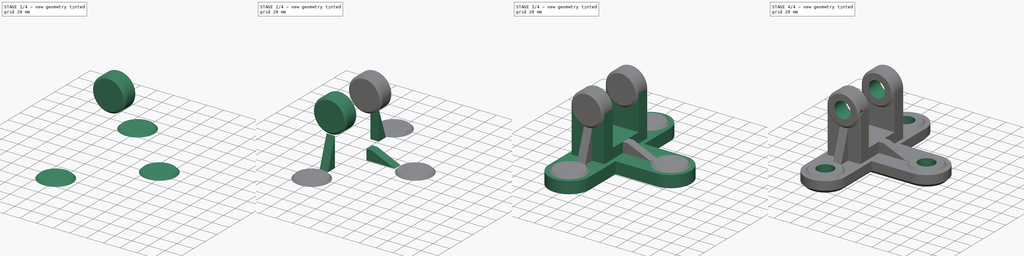
[diagram: build sequence overview — one tinted view per stage of 4, left to right]
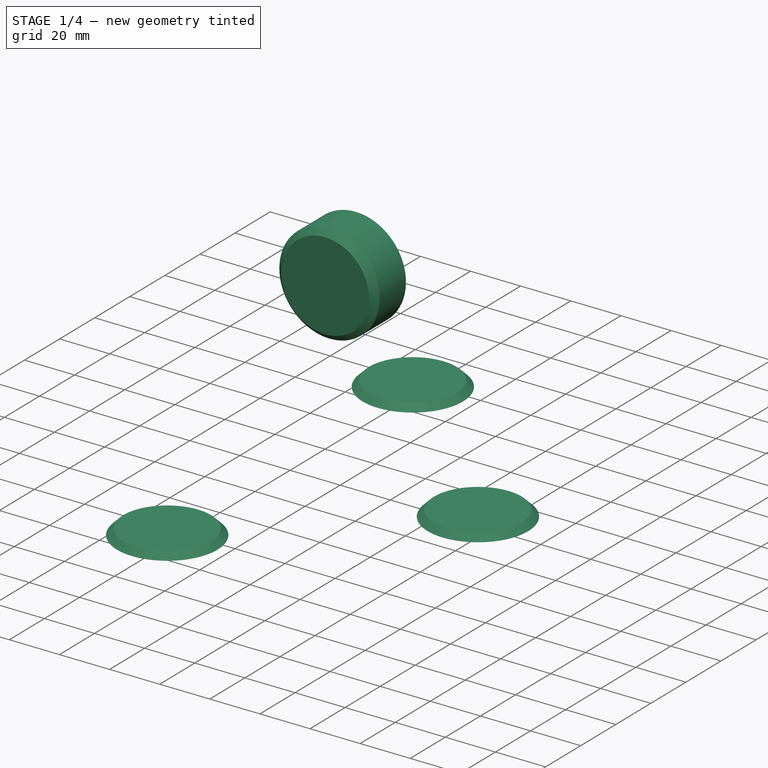
[diagram: stage 1 of 4 — iso view after this stage's code; geometry added in this stage tinted green]
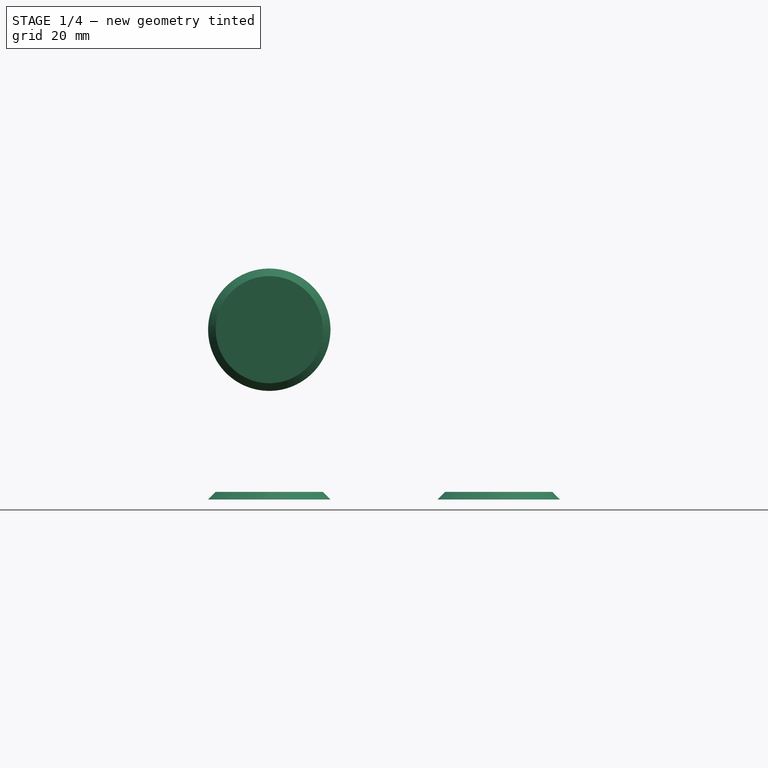
[diagram: stage 1 of 4 — front view after this stage's code; geometry added in this stage tinted green]
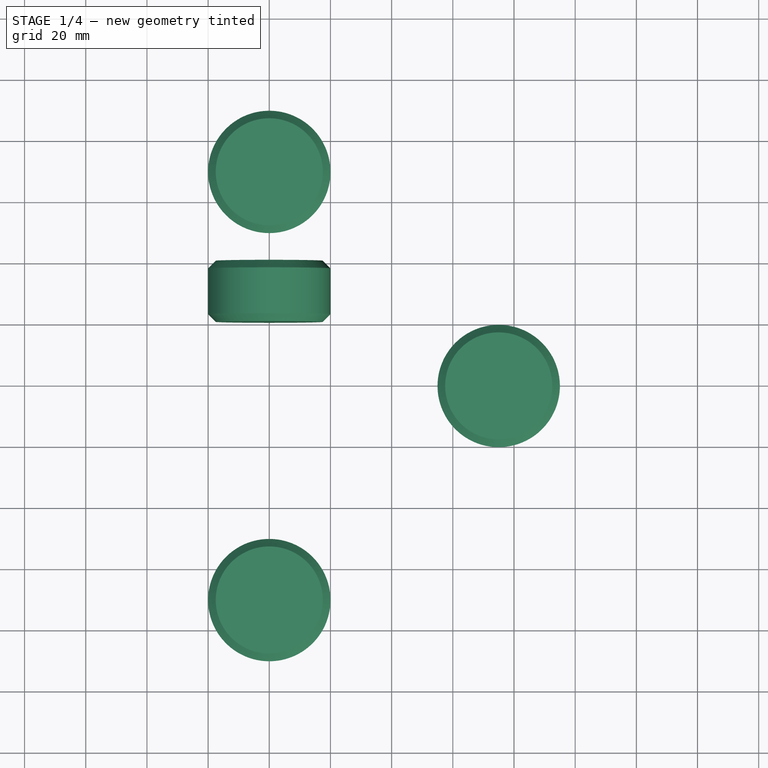
[diagram: stage 1 of 4 — top view after this stage's code; geometry added in this stage tinted green]
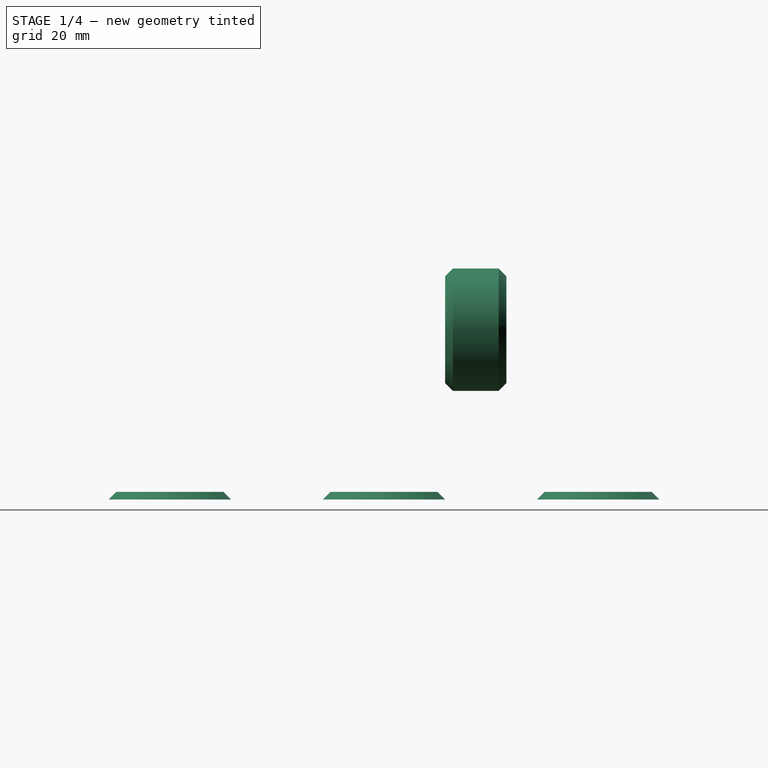
[diagram: stage 1 of 4 — right view after this stage's code; geometry added in this stage tinted green]
FCSTD DOCUMENT  (FreeCAD 0.15R4671 (Git))
Label: fork breaking
License: All rights reserved
LicenseURL: http://en.wikipedia.org/wiki/All_rights_reserved
objects: Sketcher::SketchObject×11, PartDesign::Revolution×5, PartDesign::Pad×4, PartDesign::Pocket×2, Part::MultiFuse×1, PartDesign::Chamfer×1, PartDesign::Fillet×1
note: 36 computed .brp shape members not serialized (recipe doc carries the construction recipe); baked Part::Feature solids carry a one-line shape summary decoded from their .brp

FEATURE [Sketcher::SketchObject] Sketch005
  Placement = pos=(0,0,0) rot=(0.57735,0.57735,0.57735;2.0944rad)
  sketch-geometry (7):
    g0: LineSegment StartX=20 StartY=70 StartZ=0 EndX=40 EndY=70 EndZ=0
    g1: LineSegment StartX=20 StartY=70 StartZ=0 EndX=20 EndY=87.5 EndZ=0
    g2: LineSegment StartX=20 StartY=87.5 StartZ=0 EndX=22.5 EndY=90 EndZ=0
    g3: LineSegment StartX=22.5 StartY=90 StartZ=0 EndX=37.5 EndY=90 EndZ=0
    g4: LineSegment StartX=37.5 StartY=90 StartZ=0 EndX=40 EndY=87.5 EndZ=0
    g5: LineSegment StartX=40 StartY=87.5 StartZ=0 EndX=40 EndY=70 EndZ=0
    g6: LineSegment [constr] StartX=20 StartY=70 StartZ=0 EndX=0 EndY=70 EndZ=0
  constraints (21):
    c: Horizontal(g0)
    c: Coincident(g0,g1)
    c: Vertical(g1)
    c: Coincident(g1,g2)
    c: Coincident(g2,g3)
    c: Horizontal(g3)
    c: Coincident(g3,g4)
    c: Coincident(g4,g5)
    c: Coincident(g5,g0)
    c: Equal(g2,g4)
    c: Equal(g1,g5)
    c: Vertical(g5)
    c: DistanceX(g0) = 20
    c: DistanceX(g2) = 2.5
    c: DistanceY(g2) = 2.5
    c: DistanceY(g2,g0) = -20
    c: Coincident(g6,g0)
    c: PointOnObject(g6,g-2)
    c: Horizontal(g6)
    c: DistanceX(g6) = -20
    c: DistanceY(g-1,g6) = 70
FEATURE [PartDesign::Revolution] Revolution001
  Angle = 360
  Axis = (0,-20,0)
  Base = (0,20,70)
  Placement = pos=(0,0,0) rot=(0.57735,0.57735,0.57735;2.0944rad)
  ReferenceAxis = -> Sketch005 [Axis0]
  Reversed = true
  Sketch = -> Sketch005
FEATURE [Sketcher::SketchObject] Sketch006
  Placement = pos=(0,0,0) rot=(0.57735,0.57735,0.57735;2.0944rad)
  sketch-geometry (5):
    g0: LineSegment StartX=-70 StartY=14.5 StartZ=0 EndX=-70 EndY=17 EndZ=0
    g1: LineSegment StartX=-70 StartY=17 StartZ=0 EndX=-87.5 EndY=17 EndZ=0
    g2: LineSegment StartX=-87.5 StartY=17 StartZ=0 EndX=-90 EndY=14.5 EndZ=0
    g3: LineSegment StartX=-90 StartY=14.5 StartZ=0 EndX=-70 EndY=14.5 EndZ=0
    g4: LineSegment [constr] StartX=-70 StartY=14.5 StartZ=0 EndX=-70 EndY=0 EndZ=0
  constraints (15):
    c: Vertical(g0)
    c: Coincident(g0,g1)
    c: Horizontal(g1)
    c: Coincident(g1,g2)
    c: Coincident(g2,g3)
    c: Coincident(g3,g0)
    c: Horizontal(g3)
    c: DistanceY(g0) = 2.5
    c: DistanceX(g2) = -2.5
    c: DistanceX(g3) = 20
    c: Coincident(g4,g0)
    c: PointOnObject(g4,g-1)
    c: Vertical(g4)
    c: DistanceY(g4) = -14.5
    c: DistanceX(g-1,g4) = -70
FEATURE [PartDesign::Revolution] Revolution002
  Angle = 360
  Axis = (0,0,-14.5)
  Base = (0,-70,14.5)
  Placement = pos=(0,0,0) rot=(0.57735,0.57735,0.57735;2.0944rad)
  ReferenceAxis = -> Sketch006 [Axis0]
  Reversed = true
  Sketch = -> Sketch006
FEATURE [Sketcher::SketchObject] Sketch007
  Placement = pos=(0,0,0) rot=(0.57735,0.57735,0.57735;2.0944rad)
  sketch-geometry (5):
    g0: LineSegment StartX=70 StartY=14.5 StartZ=0 EndX=70 EndY=17 EndZ=0
    g1: LineSegment StartX=70 StartY=17 StartZ=0 EndX=52.5 EndY=17 EndZ=0
    g2: LineSegment StartX=52.5 StartY=17 StartZ=0 EndX=50 EndY=14.5 EndZ=0
    g3: LineSegment StartX=50 StartY=14.5 StartZ=0 EndX=70 EndY=14.5 EndZ=0
    g4: LineSegment [constr] StartX=70 StartY=14.5 StartZ=0 EndX=70 EndY=0 EndZ=0
  constraints (15):
    c: Vertical(g0)
    c: Coincident(g0,g1)
    c: Horizontal(g1)
    c: Coincident(g1,g2)
    c: Coincident(g2,g3)
    c: Coincident(g3,g0)
    c: Horizontal(g3)
    c: DistanceY(g0) = 2.5
    c: DistanceX(g2) = -2.5
    c: DistanceX(g3) = 20
    c: Coincident(g4,g0)
    c: PointOnObject(g4,g-1)
    c: Vertical(g4)
    c: DistanceY(g4) = -14.5
    c: DistanceX(g-1,g4) = 70
FEATURE [PartDesign::Revolution] Revolution003
  Angle = 360
  Axis = (0,0,-14.5)
  Base = (0,70,14.5)
  Placement = pos=(0,0,0) rot=(0.57735,0.57735,0.57735;2.0944rad)
  ReferenceAxis = -> Sketch007 [Axis0]
  Reversed = true
  Sketch = -> Sketch007
FEATURE [Sketcher::SketchObject] Sketch008
  Placement = pos=(0,0,0) rot=(-1,0,0;4.71239rad)
  sketch-geometry (5):
    g0: LineSegment StartX=75 StartY=14.5 StartZ=0 EndX=75 EndY=17 EndZ=0
    g1: LineSegment StartX=75 StartY=17 StartZ=0 EndX=57.5 EndY=17 EndZ=0
    g2: LineSegment StartX=57.5 StartY=17 StartZ=0 EndX=55 EndY=14.5 EndZ=0
    g3: LineSegment StartX=55 StartY=14.5 StartZ=0 EndX=75 EndY=14.5 EndZ=0
    g4: LineSegment [constr] StartX=75 StartY=14.5 StartZ=0 EndX=75 EndY=0 EndZ=0
  constraints (15):
    c: Vertical(g0)
    c: Coincident(g0,g1)
    c: Horizontal(g1)
    c: Coincident(g1,g2)
    c: Coincident(g2,g3)
    c: Coincident(g3,g0)
    c: Horizontal(g3)
    c: DistanceY(g0) = 2.5
    c: DistanceX(g2) = -2.5
    c: DistanceX(g3) = 20
    c: Coincident(g4,g0)
    c: PointOnObject(g4,g-1)
    c: Vertical(g4)
    c: DistanceY(g4) = -14.5
    c: DistanceX(g-1,g4) = 75
FEATURE [PartDesign::Revolution] Revolution004
  Angle = 360
  Axis = (0,0,-14.5)
  Base = (75,0,14.5)
  Placement = pos=(0,0,0) rot=(-1,0,0;4.71239rad)
  ReferenceAxis = -> Sketch008 [Axis0]
  Reversed = true
  Sketch = -> Sketch008
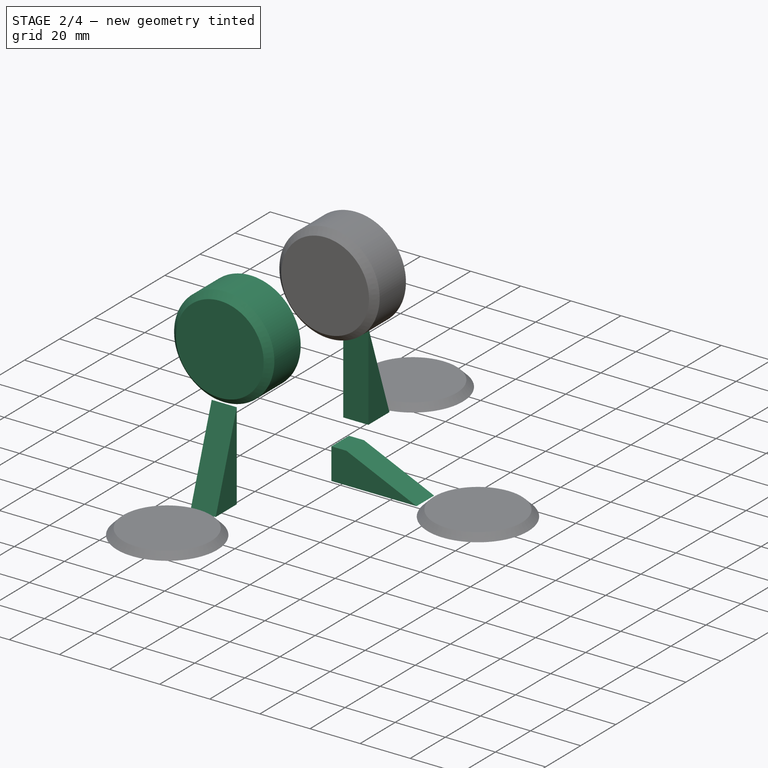
[diagram: stage 2 of 4 — iso view after this stage's code; geometry added in this stage tinted green]
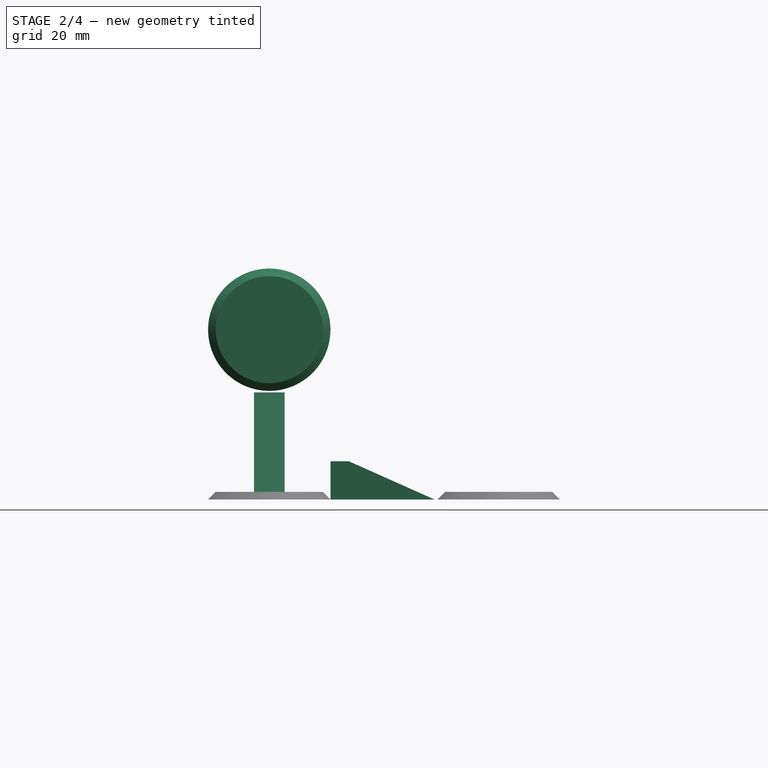
[diagram: stage 2 of 4 — front view after this stage's code; geometry added in this stage tinted green]
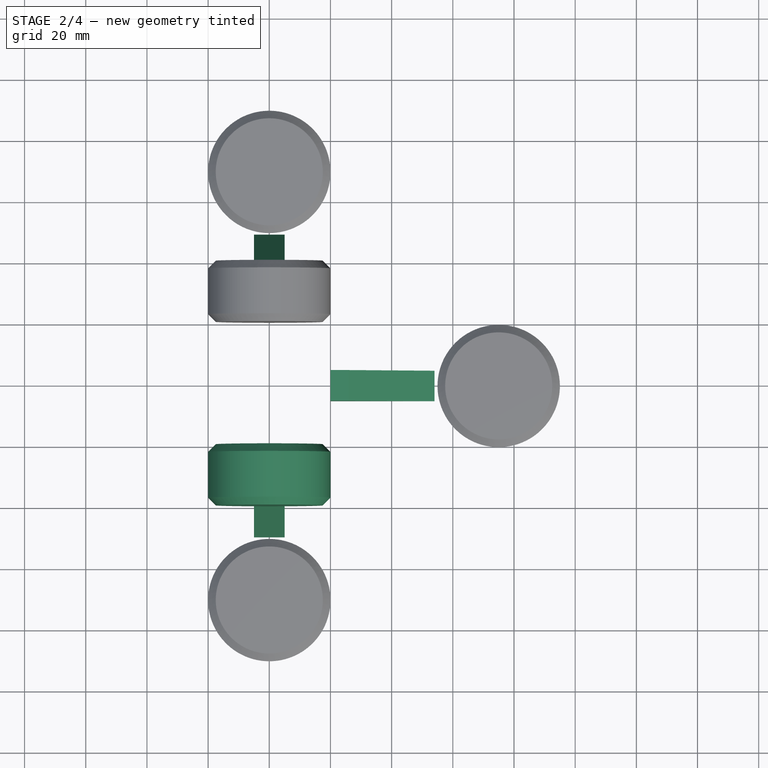
[diagram: stage 2 of 4 — top view after this stage's code; geometry added in this stage tinted green]
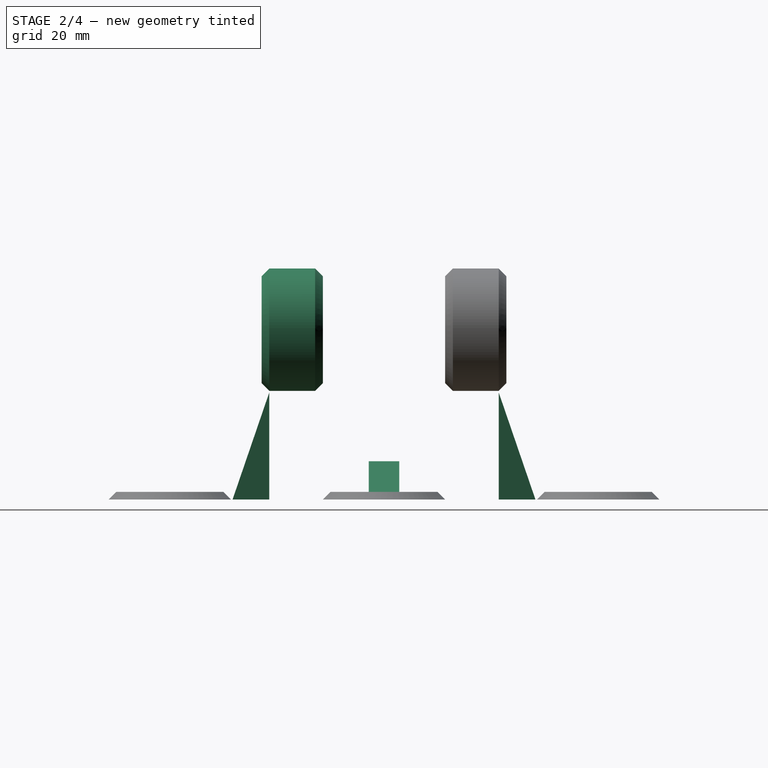
[diagram: stage 2 of 4 — right view after this stage's code; geometry added in this stage tinted green]
FEATURE [Sketcher::SketchObject] Sketch002
  Placement = pos=(0,0,0) rot=(0.57735,0.57735,0.57735;2.0944rad)
  sketch-geometry (6):
    g0: LineSegment StartX=-49.5 StartY=14.5 StartZ=0 EndX=-37.5 EndY=14.5 EndZ=0
    g1: LineSegment StartX=-37.5 StartY=14.5 StartZ=0 EndX=-37.5 EndY=49.5 EndZ=0
    g2: LineSegment StartX=-37.5 StartY=49.5 StartZ=0 EndX=-49.5 EndY=14.5 EndZ=0
    g3: LineSegment StartX=37.5 StartY=49.5 StartZ=0 EndX=37.5 EndY=14.5 EndZ=0
    g4: LineSegment StartX=37.5 StartY=14.5 StartZ=0 EndX=49.5 EndY=14.5 EndZ=0
    g5: LineSegment StartX=49.5 StartY=14.5 StartZ=0 EndX=37.5 EndY=49.5 EndZ=0
  constraints (17):
    c: Horizontal(g0)
    c: Coincident(g0,g1)
    c: Vertical(g1)
    c: Coincident(g1,g2)
    c: Coincident(g2,g0)
    c: Vertical(g3)
    c: Coincident(g3,g4)
    c: Horizontal(g4)
    c: Coincident(g4,g5)
    c: Coincident(g5,g3)
    c: Symmetric(g0,g3,g-2)
    c: Symmetric(g0,g4,g-2)
    c: Symmetric(g1,g3,g-2)
    c: DistanceX(g0) = 12
    c: DistanceY(g1) = 35
    c: DistanceY(g-1,g0) = 14.5
    c: DistanceX(g-1,g0) = -37.5
FEATURE [PartDesign::Pad] Pad002
  Length = 10
  Length2 = 100
  Midplane = true
  Placement = pos=(0,0,0) rot=(0.57735,0.57735,0.57735;2.0944rad)
  Sketch = -> Sketch002
  Type = 0
FEATURE [Sketcher::SketchObject] Sketch003
  Placement = pos=(0,0,0) rot=(-1,0,0;4.71239rad)
  sketch-geometry (4):
    g0: LineSegment StartX=20 StartY=14.5 StartZ=0 EndX=20 EndY=27 EndZ=0
    g1: LineSegment StartX=20 StartY=27 StartZ=0 EndX=26 EndY=27 EndZ=0
    g2: LineSegment StartX=26 StartY=27 StartZ=0 EndX=54 EndY=14.5 EndZ=0
    g3: LineSegment StartX=54 StartY=14.5 StartZ=0 EndX=20 EndY=14.5 EndZ=0
  constraints (12):
    c: Vertical(g0)
    c: Coincident(g0,g1)
    c: Horizontal(g1)
    c: Coincident(g1,g2)
    c: Coincident(g2,g3)
    c: Coincident(g3,g0)
    c: Horizontal(g3)
    c: DistanceX(g-1,g0) = 20
    c: DistanceY(g-1,g0) = 14.5
    c: DistanceX(g3) = -34
    c: DistanceX(g1) = 6
    c: DistanceY(g-1,g0) = 27
FEATURE [PartDesign::Pad] Pad003
  Length = 10
  Length2 = 100
  Midplane = true
  Placement = pos=(0,0,0) rot=(-1,0,0;4.71239rad)
  Sketch = -> Sketch003
  Type = 0
FEATURE [Sketcher::SketchObject] Sketch004
  Placement = pos=(0,0,0) rot=(0.57735,0.57735,0.57735;2.0944rad)
  sketch-geometry (7):
    g0: LineSegment StartX=-40 StartY=70 StartZ=0 EndX=-20 EndY=70 EndZ=0
    g1: LineSegment StartX=-40 StartY=70 StartZ=0 EndX=-40 EndY=87.5 EndZ=0
    g2: LineSegment StartX=-40 StartY=87.5 StartZ=0 EndX=-37.5 EndY=90 EndZ=0
    g3: LineSegment StartX=-37.5 StartY=90 StartZ=0 EndX=-22.5 EndY=90 EndZ=0
    g4: LineSegment StartX=-22.5 StartY=90 StartZ=0 EndX=-20 EndY=87.5 EndZ=0
    g5: LineSegment StartX=-20 StartY=87.5 StartZ=0 EndX=-20 EndY=70 EndZ=0
    g6: LineSegment [constr] StartX=-20 StartY=70 StartZ=0 EndX=0 EndY=70 EndZ=0
  constraints (21):
    c: Horizontal(g0)
    c: Coincident(g0,g1)
    c: Vertical(g1)
    c: Coincident(g1,g2)
    c: Coincident(g2,g3)
    c: Horizontal(g3)
    c: Coincident(g3,g4)
    c: Coincident(g4,g5)
    c: Coincident(g5,g0)
    c: Equal(g2,g4)
    c: Equal(g1,g5)
    c: Vertical(g5)
    c: DistanceX(g0) = 20
    c: DistanceX(g2) = 2.5
    c: DistanceY(g2) = 2.5
    c: DistanceY(g2,g0) = -20
    c: Coincident(g6,g0)
    c: PointOnObject(g6,g-2)
    c: Horizontal(g6)
    c: DistanceY(g-1,g6) = 70
    c: DistanceX(g6) = 20
FEATURE [PartDesign::Revolution] Revolution
  Angle = 360
  Axis = (0,20,0)
  Base = (0,-20,70)
  Placement = pos=(0,0,0) rot=(0.57735,0.57735,0.57735;2.0944rad)
  ReferenceAxis = -> Sketch004 [Axis0]
  Sketch = -> Sketch004
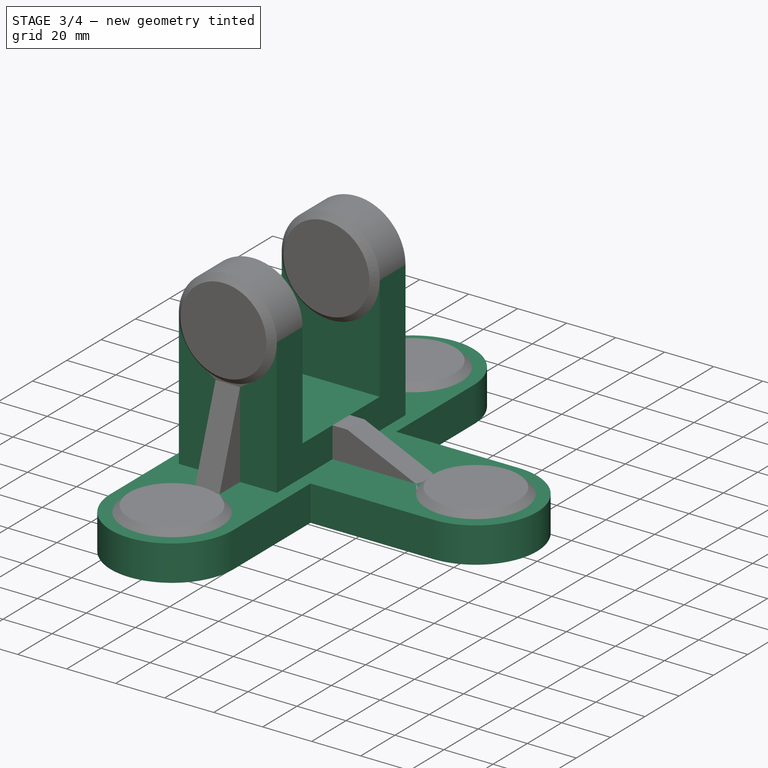
[diagram: stage 3 of 4 — iso view after this stage's code; geometry added in this stage tinted green]
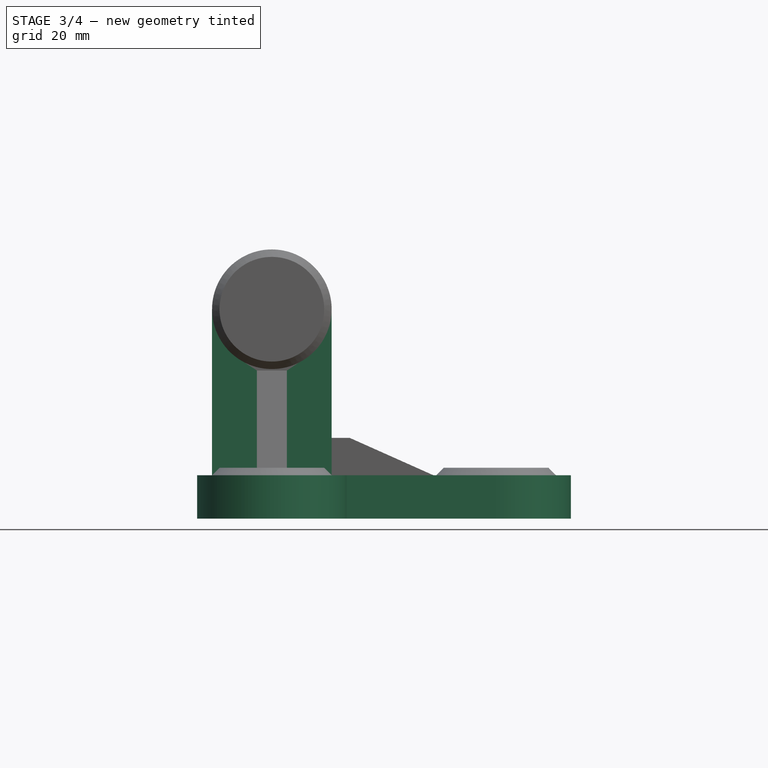
[diagram: stage 3 of 4 — front view after this stage's code; geometry added in this stage tinted green]
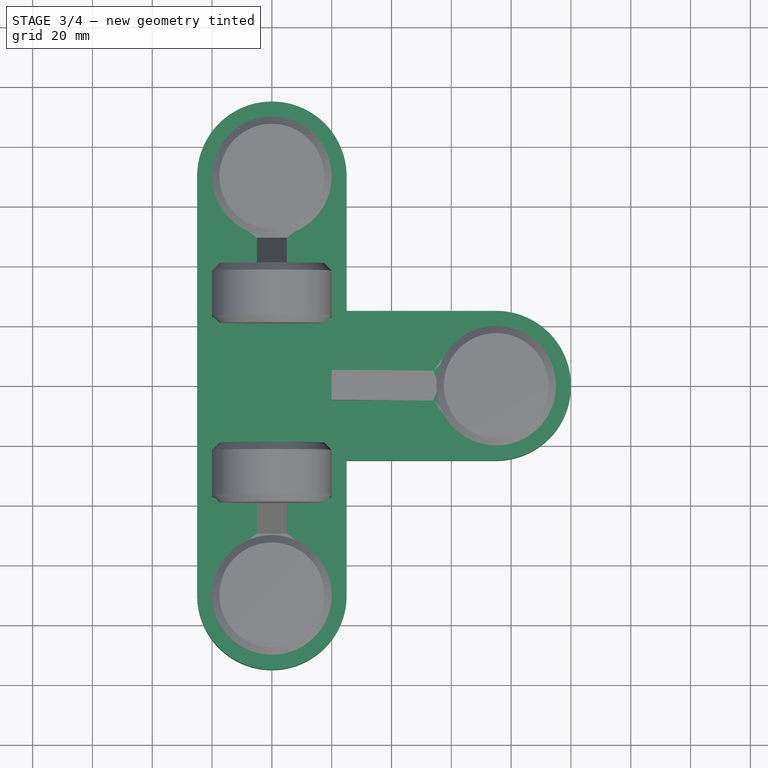
[diagram: stage 3 of 4 — top view after this stage's code; geometry added in this stage tinted green]
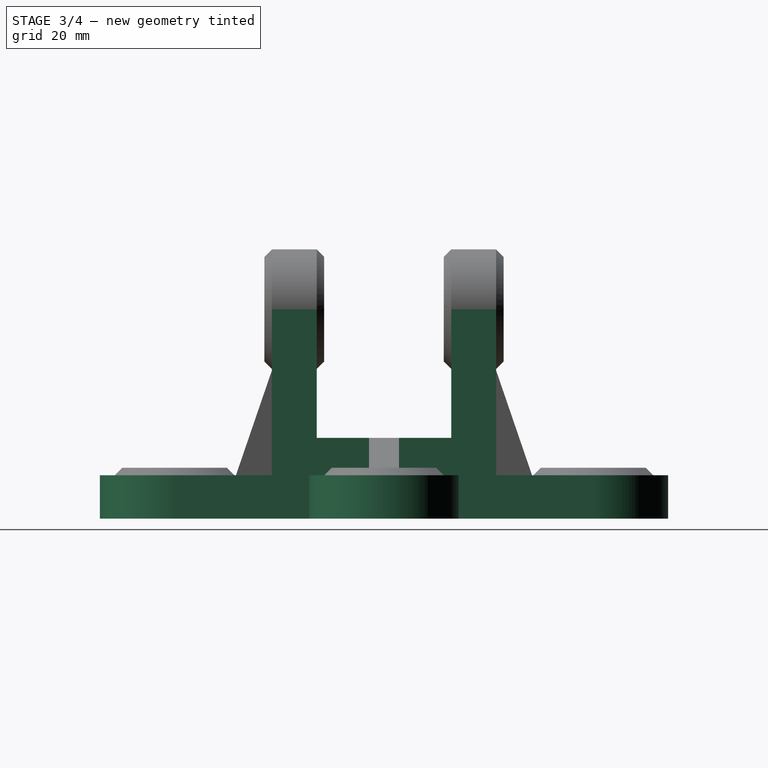
[diagram: stage 3 of 4 — right view after this stage's code; geometry added in this stage tinted green]
FEATURE [Sketcher::SketchObject] Sketch
  sketch-geometry (8):
    g0: LineSegment StartX=-25 StartY=-70 StartZ=0 EndX=-25 EndY=70 EndZ=0
    g1: LineSegment StartX=25 StartY=70 StartZ=0 EndX=25 EndY=25 EndZ=0
    g2: LineSegment StartX=25 StartY=25 StartZ=0 EndX=75 EndY=25 EndZ=0
    g3: LineSegment StartX=25 StartY=-70 StartZ=0 EndX=25 EndY=-25 EndZ=0
    g4: LineSegment StartX=25 StartY=-25 StartZ=0 EndX=75 EndY=-25 EndZ=0
    g5: ArcOfCircle CenterX=0 CenterY=70 CenterZ=0 NormalX=0 NormalY=0 NormalZ=1 Radius=25 StartAngle=2.9607e-08 EndAngle=3.14159
    g6: ArcOfCircle CenterX=0 CenterY=-70 CenterZ=0 NormalX=0 NormalY=0 NormalZ=1 Radius=25 StartAngle=3.14159 EndAngle=6.28319
    g7: ArcOfCircle CenterX=75 CenterY=0 CenterZ=0 NormalX=0 NormalY=0 NormalZ=1 Radius=25 StartAngle=4.71239 EndAngle=7.85398
  constraints (27):
    c: Vertical(g0)
    c: Vertical(g1)
    c: Coincident(g1,g2)
    c: Horizontal(g2)
    c: Vertical(g3)
    c: Coincident(g3,g4)
    c: Horizontal(g4)
    c: PointOnObject(g5,g-2)
    c: Coincident(g5,g0)
    c: PointOnObject(g6,g-2)
    c: Coincident(g6,g0)
    c: Coincident(g6,g3)
    c: PointOnObject(g7,g-1)
    c: Coincident(g7,g2)
    c: Tangent(g1,g5)
    c: Tangent(g4,g7)
    c: Equal(g1,g3)
    c: Equal(g4,g2)
    c: Tangent(g3,g6)
    c: Tangent(g0,g6)
    c: DistanceY(g5,g6) = -140
    c: Coincident(g1,g5)
    c: Coincident(g7,g4)
    c: Tangent(g0,g5)
    c: Radius(g6) = 25
    c: Radius(g7) = 25
    c: DistanceX(g-1,g7) = 75
FEATURE [PartDesign::Pad] Pad
  Length = 14.5
  Length2 = 100
  Sketch = -> Sketch
  Type = 0
FEATURE [Sketcher::SketchObject] Sketch001
  Placement = pos=(0,0,0) rot=(0.57735,0.57735,0.57735;2.0944rad)
  sketch-geometry (8):
    g0: LineSegment StartX=-37.5 StartY=0 StartZ=0 EndX=-37.5 EndY=70 EndZ=0
    g1: LineSegment StartX=-37.5 StartY=70 StartZ=0 EndX=-22.5 EndY=70 EndZ=0
    g2: LineSegment StartX=-22.5 StartY=70 StartZ=0 EndX=-22.5 EndY=27 EndZ=0
    g3: LineSegment StartX=-22.5 StartY=27 StartZ=0 EndX=22.5 EndY=27 EndZ=0
    g4: LineSegment StartX=22.5 StartY=27 StartZ=0 EndX=22.5 EndY=70 EndZ=0
    g5: LineSegment StartX=22.5 StartY=70 StartZ=0 EndX=37.5 EndY=70 EndZ=0
    g6: LineSegment StartX=37.5 StartY=70 StartZ=0 EndX=37.5 EndY=0 EndZ=0
    g7: LineSegment StartX=37.5 StartY=0 StartZ=0 EndX=-37.5 EndY=0 EndZ=0
  constraints (24):
    c: PointOnObject(g0,g-1)
    c: Vertical(g0)
    c: Coincident(g0,g1)
    c: Horizontal(g1)
    c: Coincident(g1,g2)
    c: Vertical(g2)
    c: Coincident(g2,g3)
    c: Horizontal(g3)
    c: Coincident(g3,g4)
    c: Vertical(g4)
    c: Coincident(g4,g5)
    c: Horizontal(g5)
    c: Coincident(g5,g6)
    c: PointOnObject(g6,g-1)
    c: Vertical(g6)
    c: Coincident(g6,g7)
    c: Coincident(g7,g0)
    c: Symmetric(g6,g0,g-2)
    c: Symmetric(g3,g2,g-2)
    c: Equal(g6,g0)
    c: DistanceX(g1) = 15
    c: DistanceX(g7) = -75
    c: DistanceY(g0) = 70
    c: DistanceY(g2,g0) = -27
FEATURE [PartDesign::Pad] Pad001
  Length = 40
  Length2 = 100
  Midplane = true
  Placement = pos=(0,0,0) rot=(0.57735,0.57735,0.57735;2.0944rad)
  Sketch = -> Sketch001
  Type = 0
FEATURE [Part::MultiFuse] Fusion
  Shapes = -> [Revolution004,Revolution003,Revolution002,Revolution001,Revolution,Pad003,Pad002,Pad001,Pad]
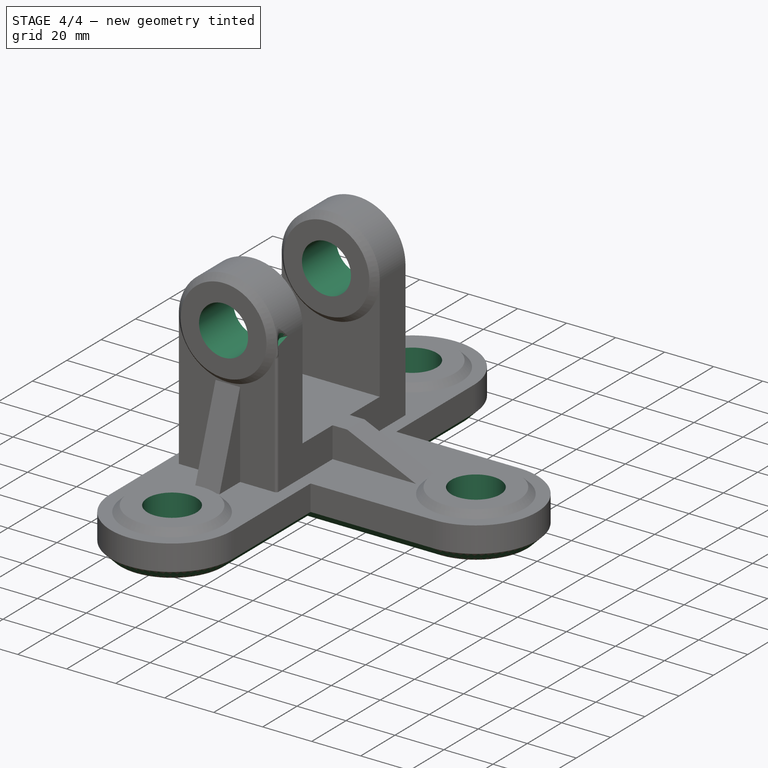
[diagram: stage 4 of 4 — iso view after this stage's code; geometry added in this stage tinted green]
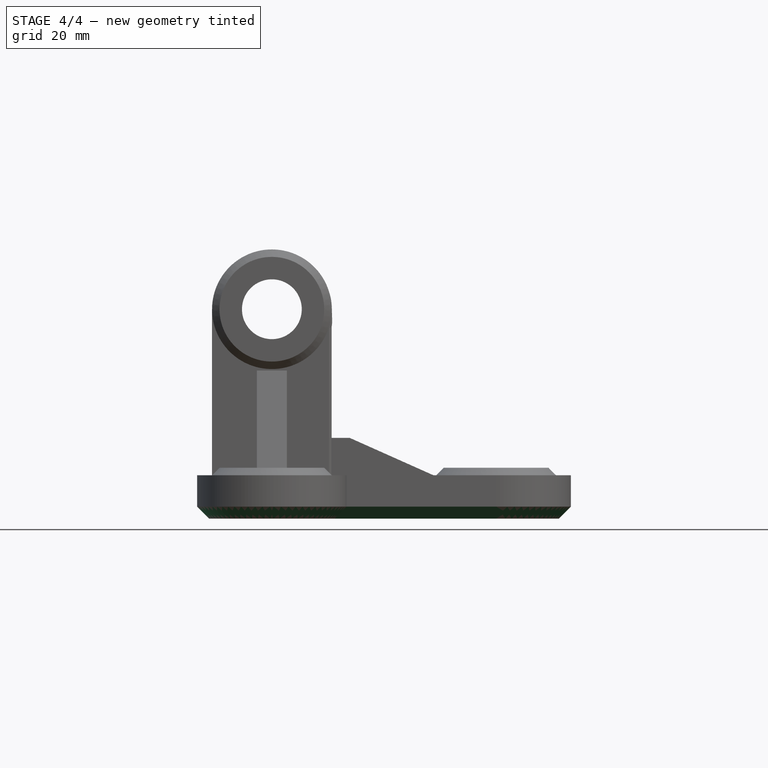
[diagram: stage 4 of 4 — front view after this stage's code; geometry added in this stage tinted green]
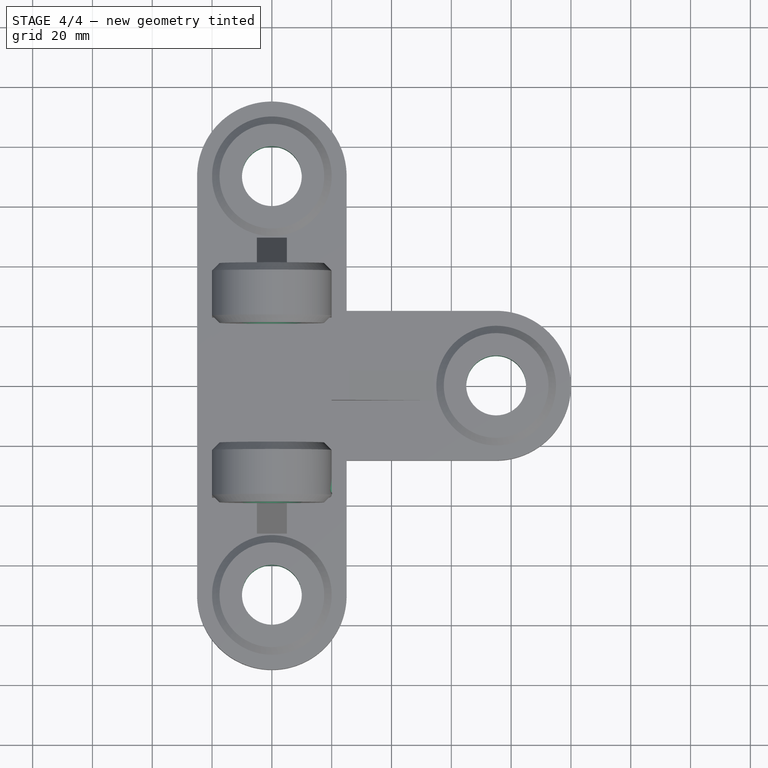
[diagram: stage 4 of 4 — top view after this stage's code; geometry added in this stage tinted green]
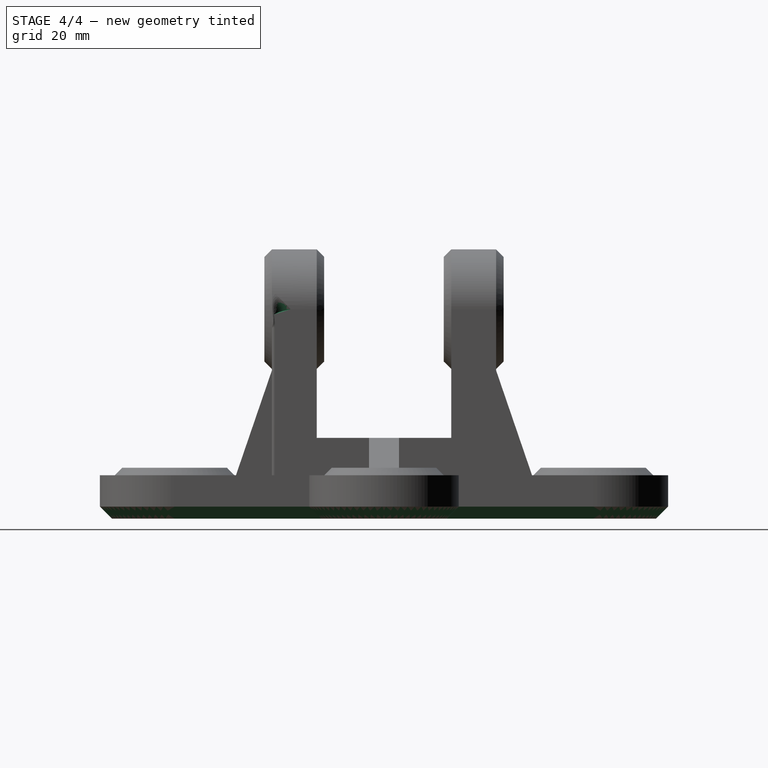
[diagram: stage 4 of 4 — right view after this stage's code; geometry added in this stage tinted green]
FEATURE [Sketcher::SketchObject] Sketch009
  ExternalGeometry = -> [Fusion]
  Placement = pos=(0,-40,0) rot=(1,0,0;1.5708rad)
  Support = -> Fusion [Face45]
  sketch-geometry (1):
    g0: Circle CenterX=0 CenterY=70 CenterZ=0 NormalX=0 NormalY=0 NormalZ=1 Radius=10
  constraints (2):
    c: Coincident(g0,g-3)
    c: Radius(g0) = 10
FEATURE [PartDesign::Pocket] Pocket
  Length = 5
  Sketch = -> Sketch009
  Type = 1
FEATURE [Sketcher::SketchObject] Sketch010
  ExternalGeometry = -> [Pocket]
  Placement = pos=(0,0,17) rot=(0,0,1;0rad)
  Support = -> Pocket [Face29]
  sketch-geometry (3):
    g0: Circle CenterX=0 CenterY=70 CenterZ=0 NormalX=0 NormalY=0 NormalZ=1 Radius=10
    g1: Circle CenterX=75 CenterY=0 CenterZ=0 NormalX=0 NormalY=0 NormalZ=1 Radius=10
    g2: Circle CenterX=0 CenterY=-70 CenterZ=0 NormalX=0 NormalY=0 NormalZ=1 Radius=10
  constraints (6):
    c: Coincident(g0,g-3)
    c: Coincident(g1,g-4)
    c: Coincident(g2,g-5)
    c: Equal(g2,g1)
    c: Equal(g1,g0)
    c: Radius(g0) = 10
FEATURE [PartDesign::Pocket] Pocket001
  Length = 5
  Sketch = -> Sketch010
  Type = 1
FEATURE [PartDesign::Chamfer] Chamfer
  Base = -> Pocket001 [Edge3,Edge6,Edge9,Edge11,Edge12,Edge13,Edge14,Edge15,Edge16,Edge17,Edge18,Edge19,Edge20,Edge21,Edge22]
  Size = 4
FEATURE [PartDesign::Fillet] Fillet
  Base = -> Chamfer [Edge78]
  Radius = 1
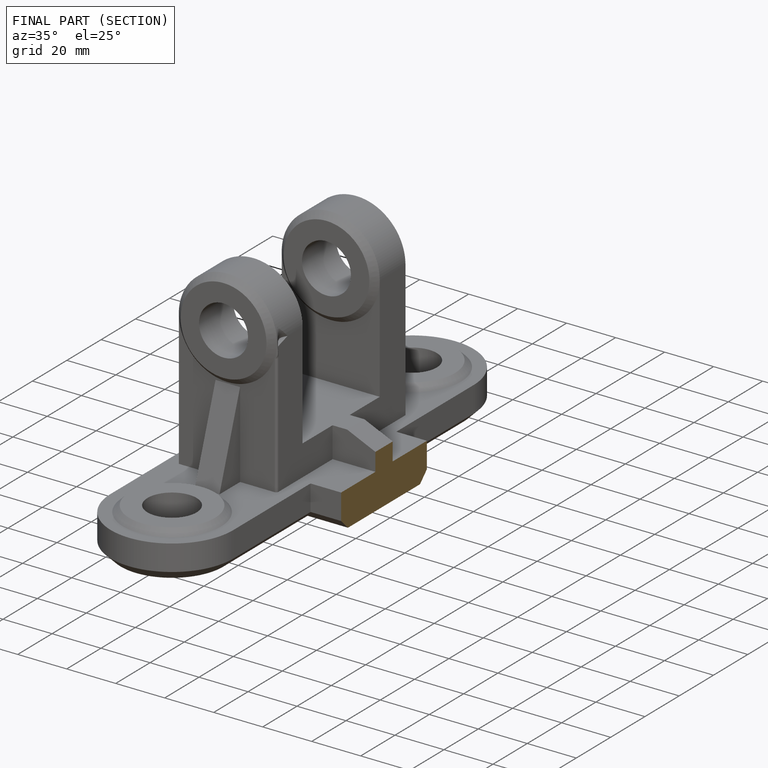
[diagram: finished part — half-section view (interior)]
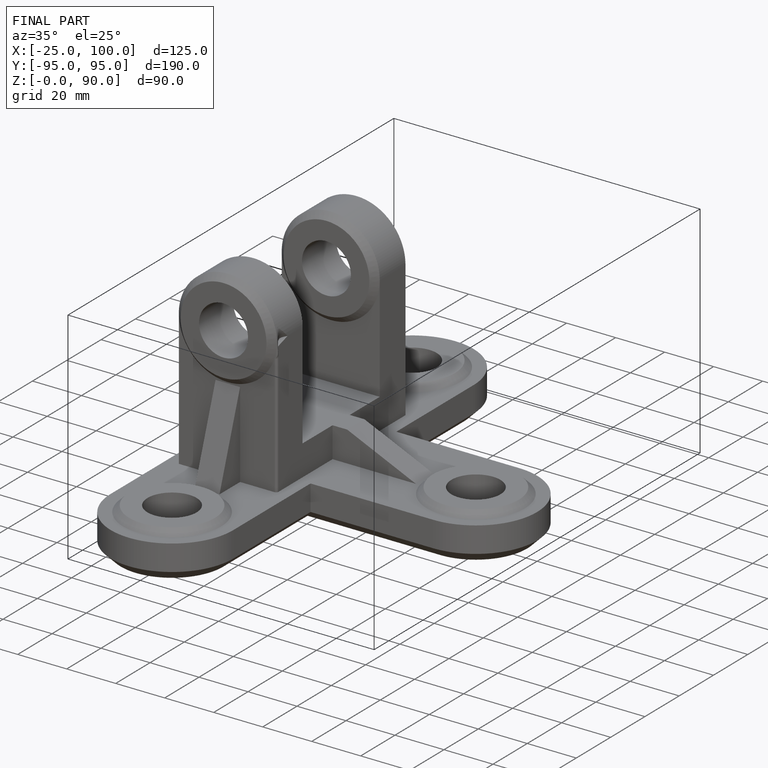
[diagram: finished part — iso view with bounding-box wireframe]
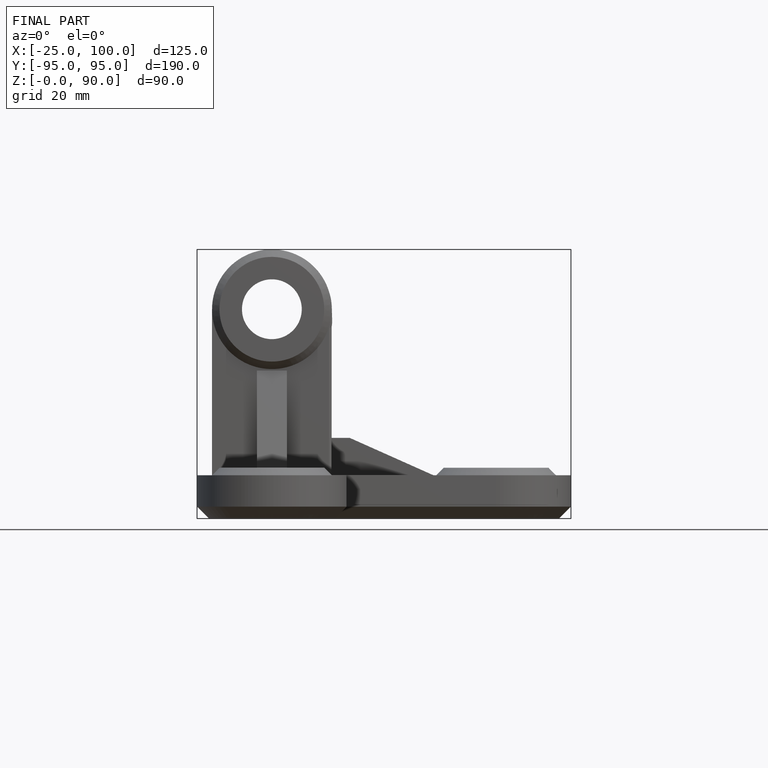
[diagram: finished part — front view with bounding-box wireframe]
